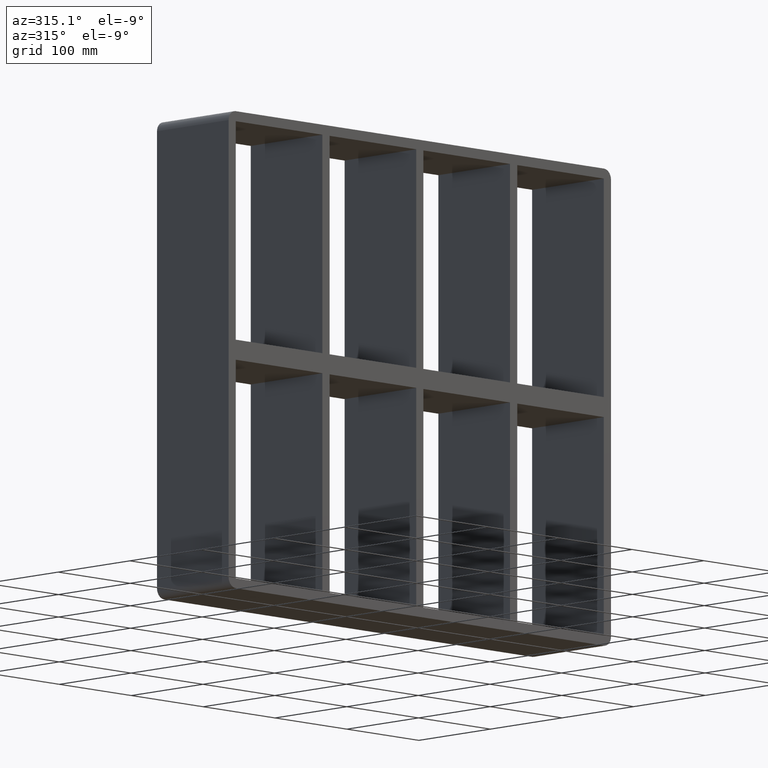
[diagram: clean part render]
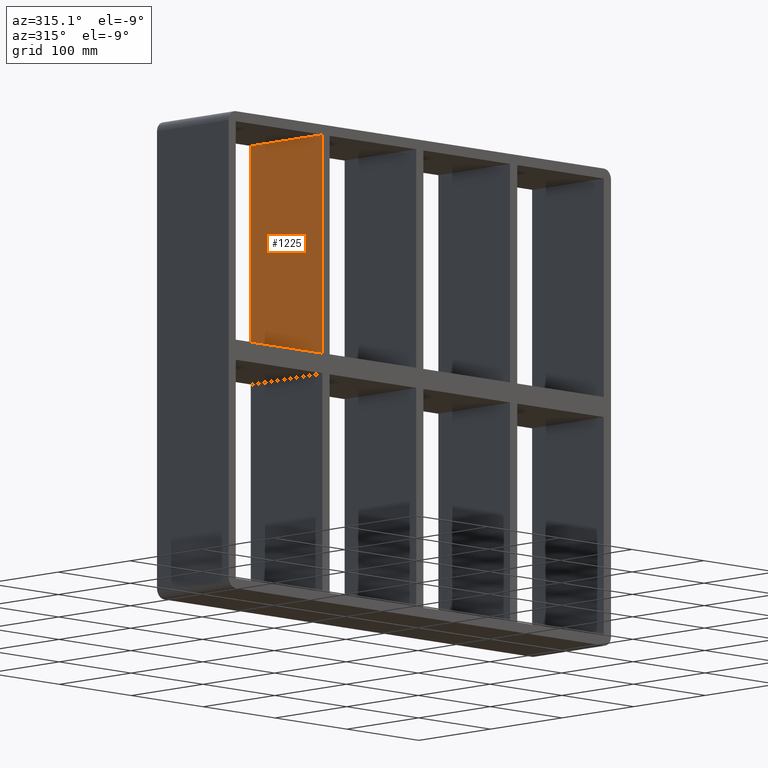
[diagram: same view with one face highlighted and labeled with its STEP entity id]
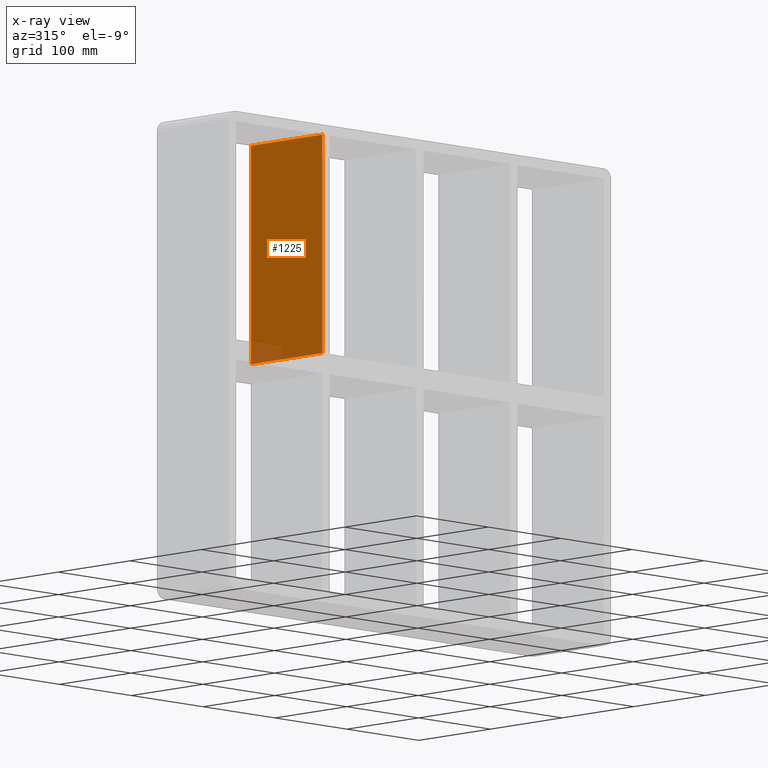
[diagram: x-ray of the same camera — body ghosted, the highlighted face saturated]
A machine part, auxiliary view. The second image highlights one B-rep face of the part: STEP entity #1225.
The next image is the same camera in x-ray: the body ghosted, the highlighted face saturated — about 3% of this face is hidden behind the body in this view.
In plain terms, the highlighted planar face has unit normal (-1, 0, 0).
Its self-contained STEP definition (entity closure, byte-faithful):
#670=CARTESIAN_POINT('',(-135.50000000000125,-3.0,227.99999999999997));
#671=VERTEX_POINT('',#670);
#678=CARTESIAN_POINT('',(-135.50000000000125,-3.0,10.0));
#679=VERTEX_POINT('',#678);
#680=CARTESIAN_POINT('',(-135.50000000000125,-3.0,10.0));
#681=DIRECTION('',(0.0,0.0,1.0));
#682=VECTOR('',#681,217.99999999999997);
#683=LINE('',#680,#682);
#684=EDGE_CURVE('',#679,#671,#683,.T.);
#928=CARTESIAN_POINT('',(-135.50000000000125,97.0,10.0));
#929=VERTEX_POINT('',#928);
#936=CARTESIAN_POINT('',(-135.50000000000125,97.0,227.99999999999997));
#937=VERTEX_POINT('',#936);
#938=CARTESIAN_POINT('',(-135.50000000000125,97.0,10.0));
#939=DIRECTION('',(0.0,0.0,1.0));
#940=VECTOR('',#939,217.99999999999997);
#941=LINE('',#938,#940);
#942=EDGE_CURVE('',#929,#937,#941,.T.);
#1151=CARTESIAN_POINT('',(-135.50000000000125,97.0,10.0));
#1152=DIRECTION('',(0.0,-1.0,0.0));
#1153=VECTOR('',#1152,100.0);
#1154=LINE('',#1151,#1153);
#1155=EDGE_CURVE('',#929,#679,#1154,.T.);
#1209=CARTESIAN_POINT('',(-135.50000000000125,-3.0,-227.99999999999997));
#1210=DIRECTION('',(-1.0,0.0,0.0));
#1211=DIRECTION('',(0.0,0.0,1.0));
#1212=AXIS2_PLACEMENT_3D('',#1209,#1210,#1211);
#1213=PLANE('',#1212);
#1214=ORIENTED_EDGE('',*,*,#1155,.T.);
#1215=ORIENTED_EDGE('',*,*,#684,.T.);
#1216=CARTESIAN_POINT('',(-135.50000000000125,97.0,227.99999999999997));
#1217=DIRECTION('',(0.0,-1.0,0.0));
#1218=VECTOR('',#1217,100.0);
#1219=LINE('',#1216,#1218);
#1220=EDGE_CURVE('',#937,#671,#1219,.T.);
#1221=ORIENTED_EDGE('',*,*,#1220,.F.);
#1222=ORIENTED_EDGE('',*,*,#942,.F.);
#1223=EDGE_LOOP('',(#1214,#1215,#1221,#1222));
#1224=FACE_OUTER_BOUND('',#1223,.T.);
#1225=ADVANCED_FACE('',(#1224),#1213,.T.);